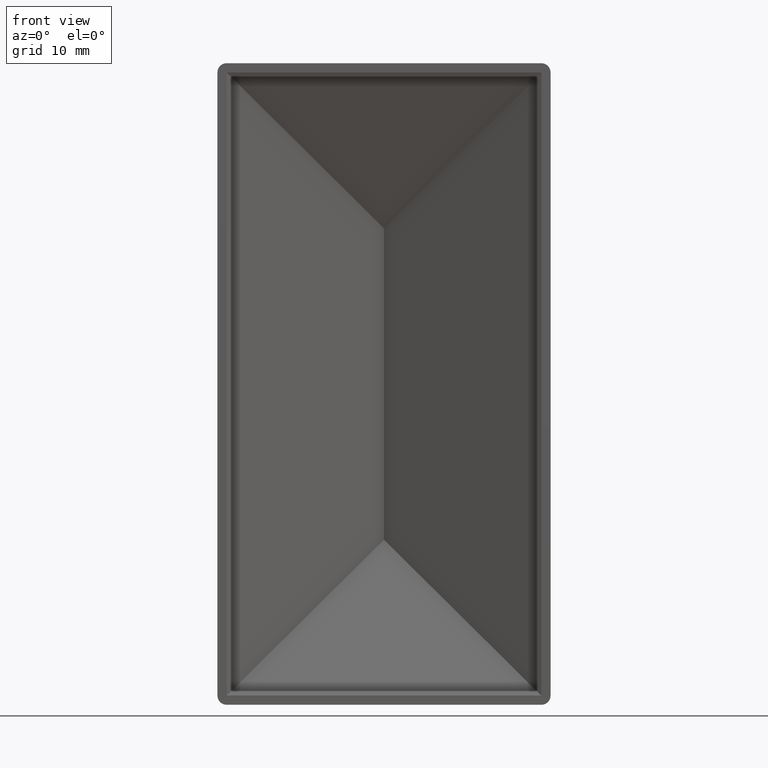
[diagram: clean part render]
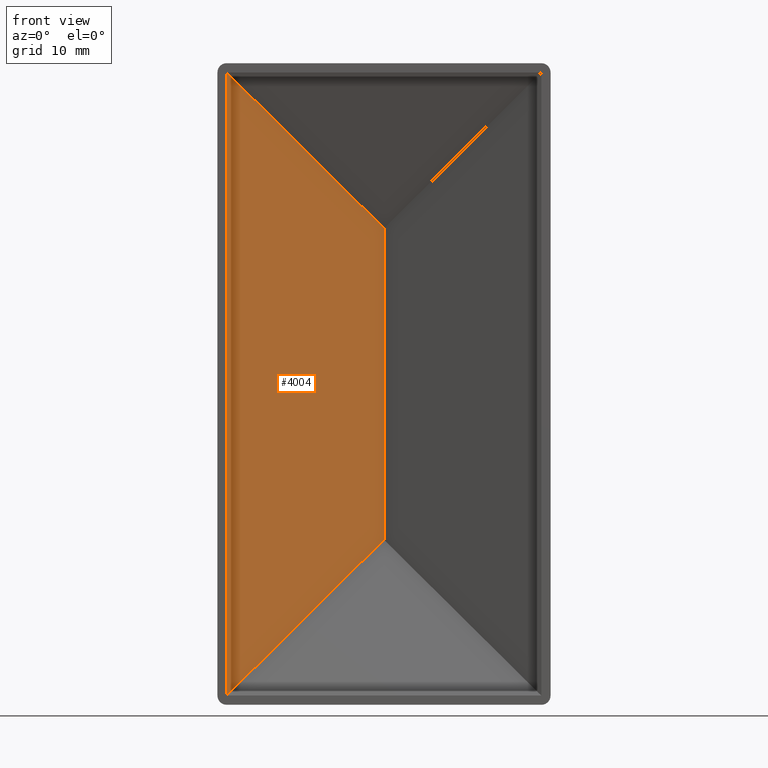
[diagram: same view with one face highlighted and labeled with its STEP entity id]
A machine part, front view. The second image highlights one B-rep face of the part: STEP entity #4004.
In plain terms, the highlighted planar face has unit normal (0.3377, -0.9412, 0).
Its self-contained STEP definition (entity closure, byte-faithful):
#849 = DIRECTION ( 'NONE',  ( -0.6883895053484736515, -0.2470103519191579888, 0.6819866384107957646 ) ) ;
#975 = EDGE_CURVE ( 'NONE', #6906, #11048, #6432, .T. ) ;
#979 = DIRECTION ( 'NONE',  ( 1.000802005371235128E-16, 3.591113078096781636E-17, 1.000000000000000000 ) ) ;
#1887 = CARTESIAN_POINT ( 'NONE',  ( -1.541334637000017093E-15, 16.49999999999999645, -25.23718128420355100 ) ) ;
#2069 = CARTESIAN_POINT ( 'NONE',  ( -25.50000000000000000, 7.350000000000007638, -51.99999999999998579 ) ) ;
#2120 = DIRECTION ( 'NONE',  ( 0.9412398073023455769, 0.3377389896790766732, 0.000000000000000000 ) ) ;
#2558 = CARTESIAN_POINT ( 'NONE',  ( -25.49999999999998934, 7.350000000000012079, -50.49999999999999289 ) ) ;
#2781 = EDGE_CURVE ( 'NONE', #11903, #6906, #6077, .T. ) ;
#3031 = ORIENTED_EDGE ( 'NONE', *, *, #4936, .T. ) ;
#3165 = VERTEX_POINT ( 'NONE', #6356 ) ;
#3291 = DIRECTION ( 'NONE',  ( -0.6883895053484736515, -0.2470103519191579888, -0.6819866384107957646 ) ) ;
#3353 = LINE ( 'NONE', #6034, #5628 ) ;
#4004 = ADVANCED_FACE ( 'NONE', ( #10887 ), #13266, .T. ) ;
#4342 = DIRECTION ( 'NONE',  ( 0.3377389896790766732, -0.9412398073023455769, 0.000000000000000000 ) ) ;
#4548 = VECTOR ( 'NONE', #979, 1000.000000000000000 ) ;
#4936 = EDGE_CURVE ( 'NONE', #3165, #11048, #8630, .T. ) ;
#5628 = VECTOR ( 'NONE', #9502, 1000.000000000000000 ) ;
#6034 = CARTESIAN_POINT ( 'NONE',  ( -1.592360203335203000E-15, 16.49999999999999645, -51.99999999999998579 ) ) ;
#6077 = LINE ( 'NONE', #10856, #8662 ) ;
#6356 = CARTESIAN_POINT ( 'NONE',  ( -8.538092108323343474E-16, 16.49999999999999645, 25.23718128420354745 ) ) ;
#6432 = LINE ( 'NONE', #2069, #4548 ) ;
#6670 = ORIENTED_EDGE ( 'NONE', *, *, #975, .F. ) ;
#6906 = VERTEX_POINT ( 'NONE', #2558 ) ;
#7084 = AXIS2_PLACEMENT_3D ( 'NONE', #12053, #4342, #2120 ) ;
#7748 = CARTESIAN_POINT ( 'NONE',  ( -25.49999999999999645, 7.350000000000008527, 50.49999999999999289 ) ) ;
#8630 = LINE ( 'NONE', #14192, #12959 ) ;
#8662 = VECTOR ( 'NONE', #3291, 1000.000000000000000 ) ;
#9502 = DIRECTION ( 'NONE',  ( 0.000000000000000000, 0.000000000000000000, 1.000000000000000000 ) ) ;
#10110 = ORIENTED_EDGE ( 'NONE', *, *, #10759, .T. ) ;
#10759 = EDGE_CURVE ( 'NONE', #11903, #3165, #3353, .T. ) ;
#10856 = CARTESIAN_POINT ( 'NONE',  ( -26.20420866700479579, 7.097313360662992565, -51.19765866245627706 ) ) ;
#10887 = FACE_OUTER_BOUND ( 'NONE', #11207, .T. ) ;
#11048 = VERTEX_POINT ( 'NONE', #7748 ) ;
#11207 = EDGE_LOOP ( 'NONE', ( #10110, #3031, #6670, #13406 ) ) ;
#11903 = VERTEX_POINT ( 'NONE', #1887 ) ;
#12053 = CARTESIAN_POINT ( 'NONE',  ( -25.49999999999998934, 7.350000000000011191, -51.99999999999998579 ) ) ;
#12959 = VECTOR ( 'NONE', #849, 1000.000000000000000 ) ;
#13266 = PLANE ( 'NONE',  #7084 ) ;
#13406 = ORIENTED_EDGE ( 'NONE', *, *, #2781, .F. ) ;
#14192 = CARTESIAN_POINT ( 'NONE',  ( -12.79476299899574698, 11.90893798271329374, 37.91293729029020199 ) ) ;